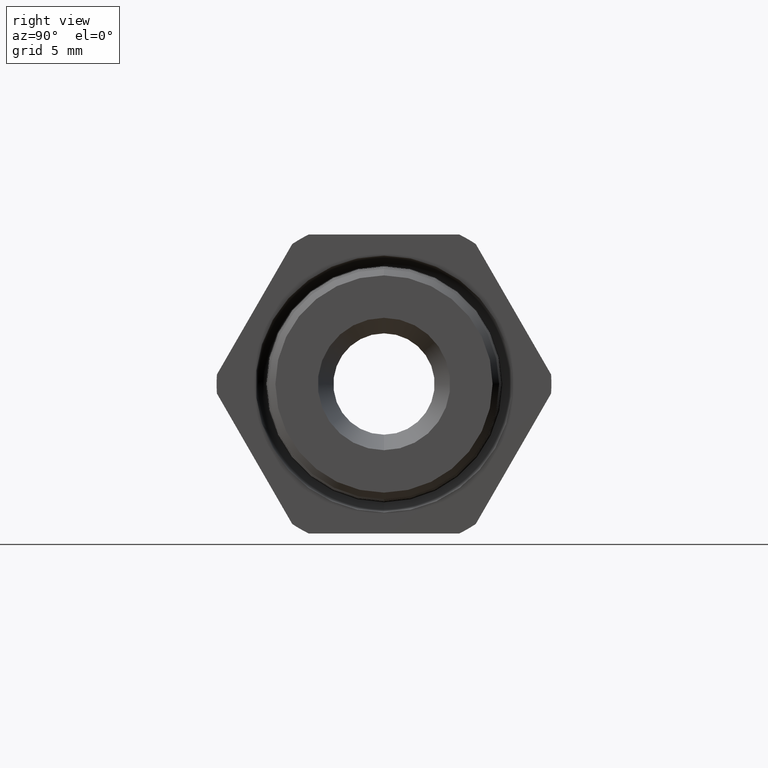
[diagram: clean part render]
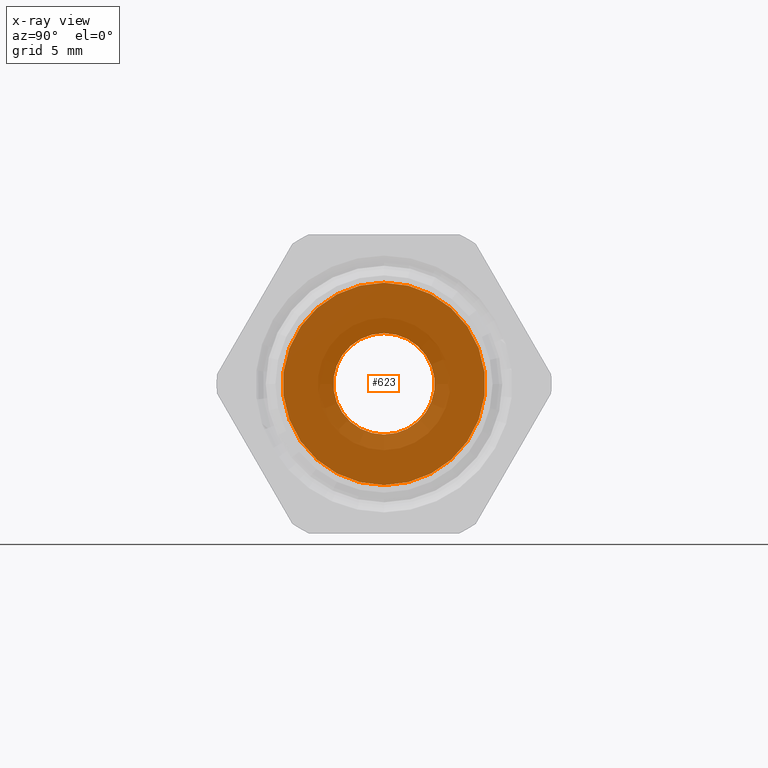
[diagram: x-ray — body ghosted, one internal face saturated and labeled with its STEP entity id]
A machine part, right view, then the same camera in x-ray: the body is ghosted and one INTERNAL B-rep face — a face not visible from any outside direction — is saturated and labeled: STEP entity #623.
In plain terms, the highlighted planar face has unit normal (-1, 0, 0).
Its self-contained STEP definition (entity closure, byte-faithful):
#572 = EDGE_CURVE ( 'NONE', #573, #574, #1937, .T. ) ;
#573 = VERTEX_POINT ( 'NONE', #1932 ) ;
#574 = VERTEX_POINT ( 'NONE', #1931 ) ;
#599 = ORIENTED_EDGE ( 'NONE', *, *, #615, .F. ) ;
#600 = ORIENTED_EDGE ( 'NONE', *, *, #601, .F. ) ;
#601 = EDGE_CURVE ( 'NONE', #617, #616, #1957, .T. ) ;
#602 = EDGE_LOOP ( 'NONE', ( #603, #605 ) ) ;
#603 = ORIENTED_EDGE ( 'NONE', *, *, #604, .T. ) ;
#604 = EDGE_CURVE ( 'NONE', #574, #573, #1952, .T. ) ;
#605 = ORIENTED_EDGE ( 'NONE', *, *, #572, .T. ) ;
#615 = EDGE_CURVE ( 'NONE', #616, #617, #1997, .T. ) ;
#616 = VERTEX_POINT ( 'NONE', #1988 ) ;
#617 = VERTEX_POINT ( 'NONE', #1987 ) ;
#623 = ADVANCED_FACE ( 'NONE', ( #1978, #1977 ), #1976, .F. ) ;
#624 = EDGE_LOOP ( 'NONE', ( #599, #600 ) ) ;
#1931 = CARTESIAN_POINT ( 'NONE',  ( -0.6687500000000000700, 0.0000000000000000000, 0.1000000000000000200 ) ) ;
#1932 = CARTESIAN_POINT ( 'NONE',  ( -0.6687500000000000700, 1.224646799147353600E-017, -0.1000000000000000200 ) ) ;
#1933 = DIRECTION ( 'NONE',  ( 0.0000000000000000000, 0.0000000000000000000, 1.000000000000000000 ) ) ;
#1934 = DIRECTION ( 'NONE',  ( -1.000000000000000000, 0.0000000000000000000, 0.0000000000000000000 ) ) ;
#1935 = CARTESIAN_POINT ( 'NONE',  ( -0.6687500000000000700, 0.0000000000000000000, 0.0000000000000000000 ) ) ;
#1936 = AXIS2_PLACEMENT_3D ( 'NONE', #1935, #1934, #1933 ) ;
#1937 = CIRCLE ( 'NONE', #1936, 0.1000000000000000200 ) ;
#1948 = DIRECTION ( 'NONE',  ( 0.0000000000000000000, 0.0000000000000000000, 1.000000000000000000 ) ) ;
#1949 = DIRECTION ( 'NONE',  ( -1.000000000000000000, 0.0000000000000000000, 0.0000000000000000000 ) ) ;
#1950 = CARTESIAN_POINT ( 'NONE',  ( -0.6687500000000000700, 0.0000000000000000000, 0.0000000000000000000 ) ) ;
#1951 = AXIS2_PLACEMENT_3D ( 'NONE', #1950, #1949, #1948 ) ;
#1952 = CIRCLE ( 'NONE', #1951, 0.1000000000000000200 ) ;
#1953 = DIRECTION ( 'NONE',  ( 0.0000000000000000000, 0.0000000000000000000, 1.000000000000000000 ) ) ;
#1954 = DIRECTION ( 'NONE',  ( -1.000000000000000000, 0.0000000000000000000, 0.0000000000000000000 ) ) ;
#1955 = CARTESIAN_POINT ( 'NONE',  ( -0.6687500000000000700, 0.0000000000000000000, 0.0000000000000000000 ) ) ;
#1956 = AXIS2_PLACEMENT_3D ( 'NONE', #1955, #1954, #1953 ) ;
#1957 = CIRCLE ( 'NONE', #1956, 0.1997500000000000400 ) ;
#1972 = DIRECTION ( 'NONE',  ( 0.0000000000000000000, 0.0000000000000000000, 1.000000000000000000 ) ) ;
#1973 = DIRECTION ( 'NONE',  ( -1.000000000000000000, 0.0000000000000000000, 0.0000000000000000000 ) ) ;
#1974 = CARTESIAN_POINT ( 'NONE',  ( -0.6687500000000000700, 0.1997500000000000400, 0.0000000000000000000 ) ) ;
#1975 = AXIS2_PLACEMENT_3D ( 'NONE', #1974, #1973, #1972 ) ;
#1976 = PLANE ( 'NONE',  #1975 ) ;
#1977 = FACE_BOUND ( 'NONE', #602, .T. ) ;
#1978 = FACE_OUTER_BOUND ( 'NONE', #624, .T. ) ;
#1987 = CARTESIAN_POINT ( 'NONE',  ( -0.6687500000000000700, 2.446231981296838500E-017, -0.1997500000000000400 ) ) ;
#1988 = CARTESIAN_POINT ( 'NONE',  ( -0.6687500000000000700, 0.0000000000000000000, 0.1997500000000000400 ) ) ;
#1989 = DIRECTION ( 'NONE',  ( 0.0000000000000000000, 0.0000000000000000000, 1.000000000000000000 ) ) ;
#1990 = DIRECTION ( 'NONE',  ( -1.000000000000000000, 0.0000000000000000000, 0.0000000000000000000 ) ) ;
#1991 = CARTESIAN_POINT ( 'NONE',  ( -0.6687500000000000700, 0.0000000000000000000, 0.0000000000000000000 ) ) ;
#1992 = AXIS2_PLACEMENT_3D ( 'NONE', #1991, #1990, #1989 ) ;
#1997 = CIRCLE ( 'NONE', #1992, 0.1997500000000000400 ) ;